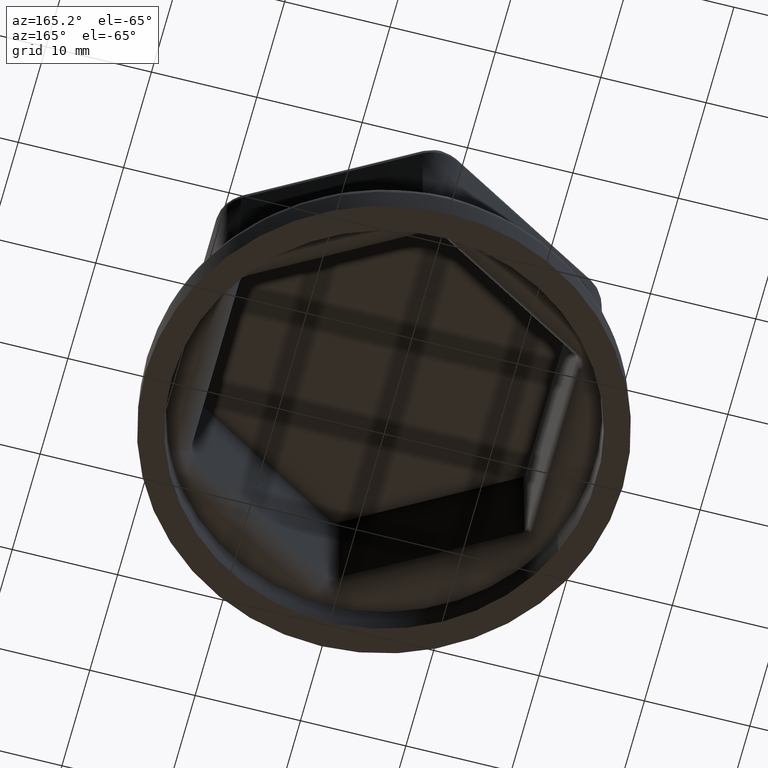
[diagram: clean part render]
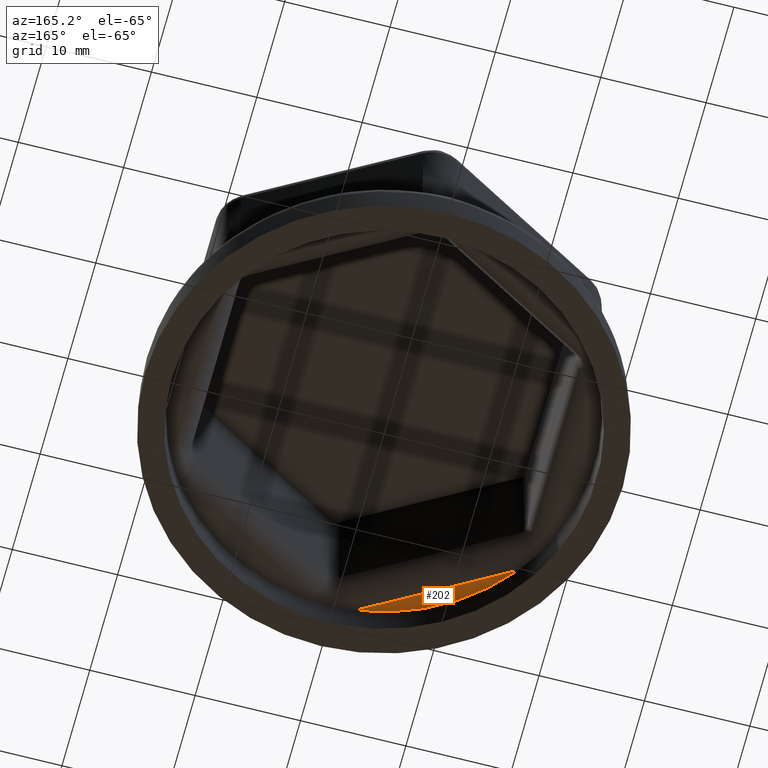
[diagram: same view with one face highlighted and labeled with its STEP entity id]
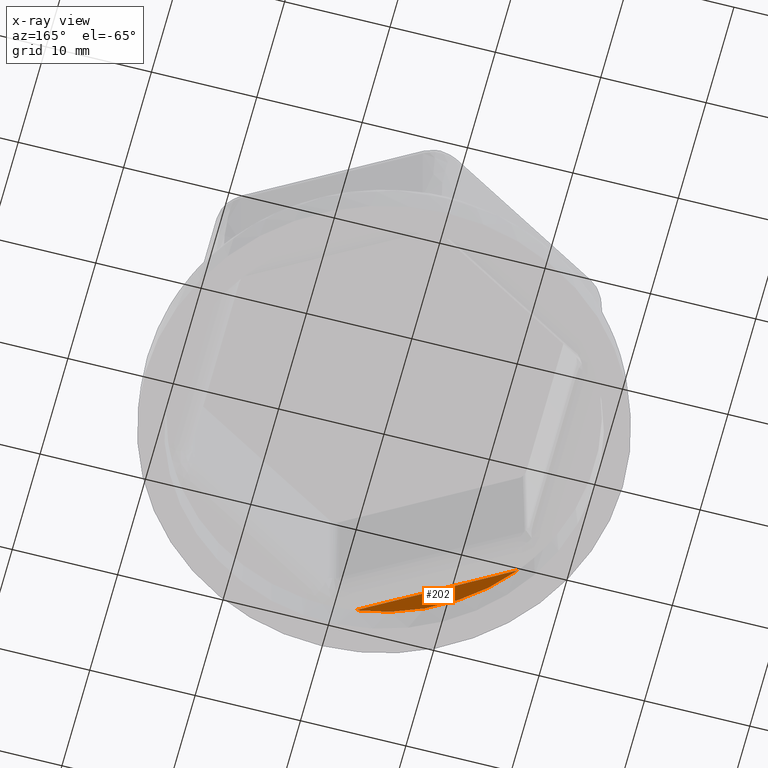
[diagram: x-ray of the same camera — body ghosted, the highlighted face saturated]
A machine part, auxiliary view. The second image highlights one B-rep face of the part: STEP entity #202.
The next image is the same camera in x-ray: the body ghosted, the highlighted face saturated — about 0% of this face is hidden behind the body in this view.
In plain terms, the highlighted planar face has unit normal (0, 0, 1).
Its self-contained STEP definition (entity closure, byte-faithful):
#202 = ADVANCED_FACE( '', ( #464 ), #465, .F. );
#464 = FACE_OUTER_BOUND( '', #5583, .T. );
#465 = PLANE( '', #5584 );
#5583 = EDGE_LOOP( '', ( #6490, #6491 ) );
#5584 = AXIS2_PLACEMENT_3D( '', #6492, #6493, #6494 );
#6490 = ORIENTED_EDGE( '', *, *, #6615, .F. );
#6491 = ORIENTED_EDGE( '', *, *, #6560, .F. );
#6492 = CARTESIAN_POINT( '', ( 0.000000000000000, 0.000000000000000, 3.30000000000000 ) );
#6493 = DIRECTION( '', ( 0.000000000000000, 0.000000000000000, 1.00000000000000 ) );
#6494 = DIRECTION( '', ( 1.00000000000000, 0.000000000000000, 0.000000000000000 ) );
#6560 = EDGE_CURVE( '', #6899, #6906, #6908, .T. );
#6615 = EDGE_CURVE( '', #6906, #6899, #6991, .T. );
#6899 = VERTEX_POINT( '', #7597 );
#6906 = VERTEX_POINT( '', #7637 );
#6908 = LINE( '', #7639, #7640 );
#6991 = CIRCLE( '', #7864, 20.0000000000000 );
#7597 = CARTESIAN_POINT( '', ( -2.55667958918538, -19.8359116119790, 3.30000000000000 ) );
#7637 = CARTESIAN_POINT( '', ( -15.9000635686038, -12.1321052795612, 3.30000000000000 ) );
#7639 = CARTESIAN_POINT( '', ( -9.22837157889462, -15.9840084457701, 3.30000000000000 ) );
#7640 = VECTOR( '', #9815, 1000.00000000000 );
#7864 = AXIS2_PLACEMENT_3D( '', #9927, #9928, #9929 );
#9815 = DIRECTION( '', ( -0.866025403784439, 0.500000000000000, 0.000000000000000 ) );
#9927 = CARTESIAN_POINT( '', ( 0.000000000000000, 0.000000000000000, 3.30000000000000 ) );
#9928 = DIRECTION( '', ( 0.000000000000000, 0.000000000000000, 1.00000000000000 ) );
#9929 = DIRECTION( '', ( 1.00000000000000, 0.000000000000000, 0.000000000000000 ) );